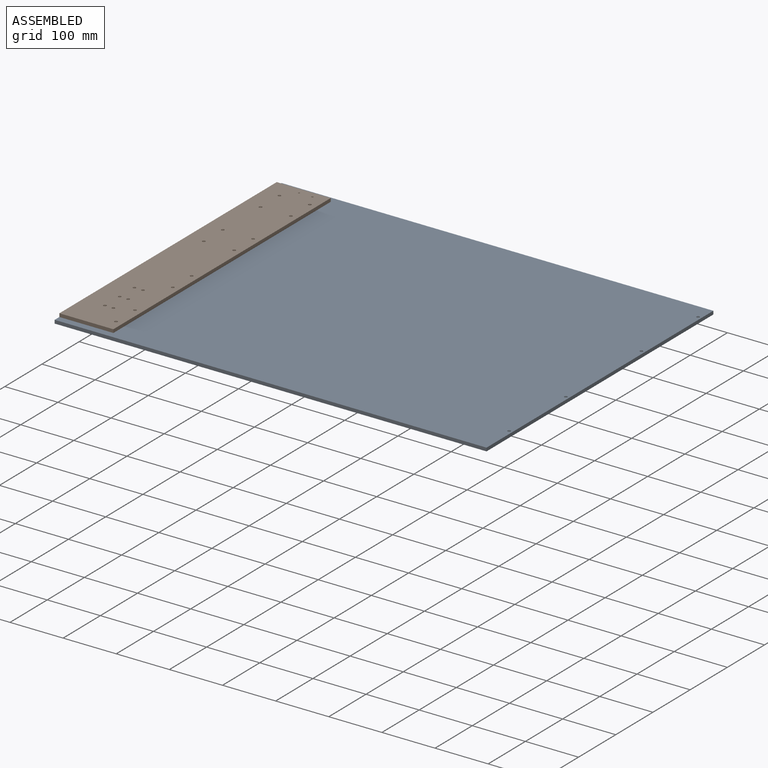
[diagram: assembled view]
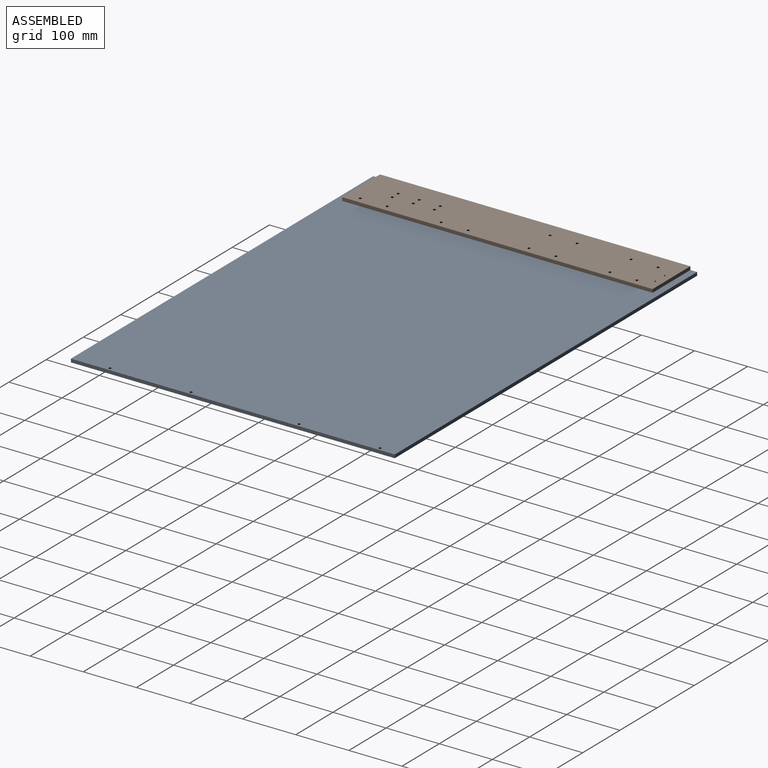
[diagram: assembled view, second angle]
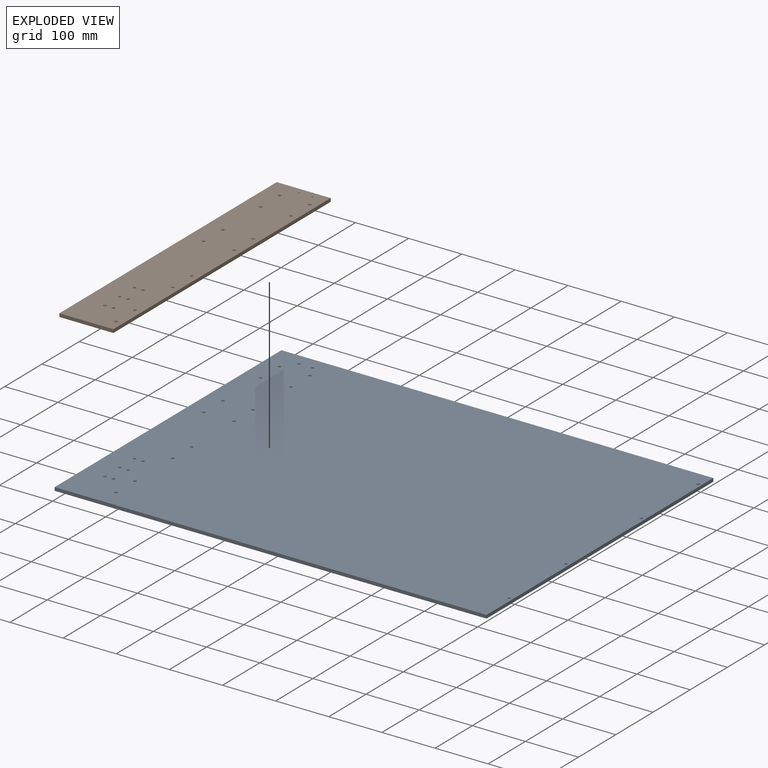
[diagram: exploded view]
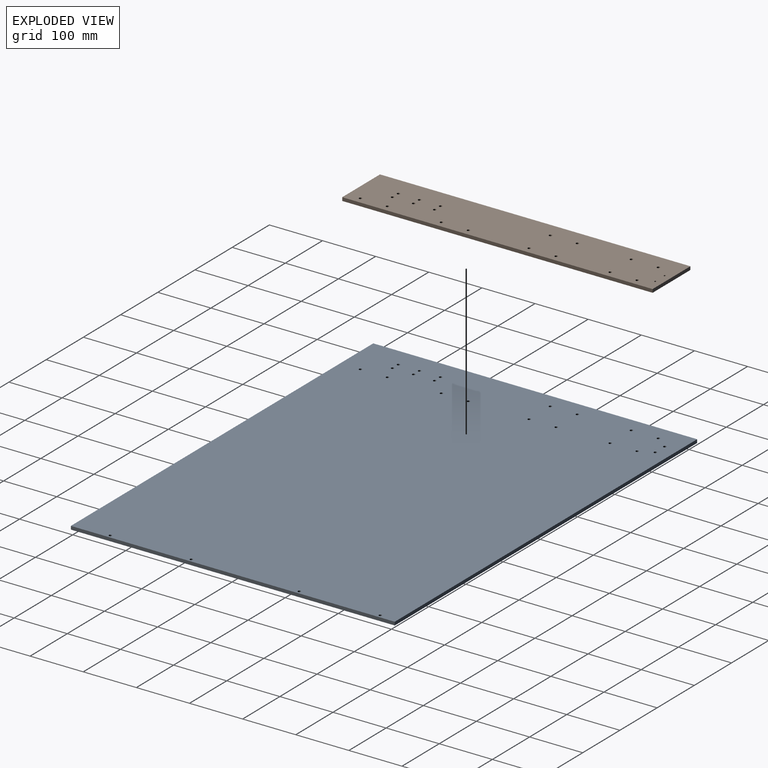
[diagram: exploded view, second angle]
ASSEMBLY  parts=2 mates=2
PART A: 30 faces, bbox 812.8x609.6x6.4 mm
  f0: plane 609.6x6.35mm, normal (1,0,0), area 3871mm2, adj f1,f3,f4,f5
  f1: plane 812.8x6.35mm, normal (0,1,0), area 5161.3mm2, adj f0,f2,f4,f5
  f2: plane 609.6x6.35mm, normal (-1,0,0), area 3871mm2, adj f1,f3,f4,f5
  f3: plane 812.8x6.35mm, normal (0,-1,0), area 5161.3mm2, adj f0,f2,f4,f5
  f4: plane 812.8x609.6mm, normal (0,0,1), area 494904.9mm2, adj f0,f1,f2,f3,f6,f7,f8,f9
  f5: plane 812.8x609.6mm, normal (0,0,-1), area 494904.9mm2, adj f0,f1,f2,f3,f6,f7,f8,f9
  f6: cylinder r=2.77mm len=6.35mm, axis (0,0,1), area 110.5mm2, adj f4,f5
  f7: cylinder r=2.77mm len=6.35mm, axis (0,0,1), area 110.5mm2, adj f4,f5
  f8: cylinder r=2.77mm len=6.35mm, axis (0,0,1), area 110.5mm2, adj f4,f5
  f9: cylinder r=2.77mm len=6.35mm, axis (0,0,1), area 110.5mm2, adj f4,f5
  f10: cylinder r=2.77mm len=6.35mm, axis (0,0,1), area 110.5mm2, adj f4,f5
  f11: cylinder r=2.77mm len=6.35mm, axis (0,0,1), area 110.5mm2, adj f4,f5
  f12: cylinder r=2.77mm len=6.35mm, axis (0,0,1), area 110.5mm2, adj f4,f5
  f13: cylinder r=2.77mm len=6.35mm, axis (0,0,1), area 110.5mm2, adj f4,f5
  f14: cylinder r=2.77mm len=6.35mm, axis (0,0,1), area 110.5mm2, adj f4,f5
  f15: cylinder r=2.77mm len=6.35mm, axis (0,0,1), area 110.5mm2, adj f4,f5
  f16: cylinder r=2.77mm len=6.35mm, axis (0,0,1), area 110.5mm2, adj f4,f5
  f17: cylinder r=2.77mm len=6.35mm, axis (0,0,1), area 110.5mm2, adj f4,f5
  f18: cylinder r=2.77mm len=6.35mm, axis (0,0,1), area 110.5mm2, adj f4,f5
  f19: cylinder r=2.77mm len=6.35mm, axis (0,0,1), area 110.5mm2, adj f4,f5
  f20: cylinder r=2.77mm len=6.35mm, axis (0,0,1), area 110.5mm2, adj f4,f5
  f21: cylinder r=2.77mm len=6.35mm, axis (0,0,1), area 110.5mm2, adj f4,f5
  f22: cylinder r=2.77mm len=6.35mm, axis (0,0,1), area 110.5mm2, adj f4,f5
  f23: cylinder r=2.77mm len=6.35mm, axis (0,0,1), area 110.5mm2, adj f4,f5
  f24: cylinder r=2.77mm len=6.35mm, axis (0,0,1), area 110.5mm2, adj f4,f5
  f25: cylinder r=2.77mm len=6.35mm, axis (0,0,1), area 110.5mm2, adj f4,f5
  f26: cylinder r=2.77mm len=6.35mm, axis (0,0,1), area 110.5mm2, adj f4,f5
  f27: cylinder r=2.77mm len=6.35mm, axis (0,0,1), area 110.5mm2, adj f4,f5
  f28: cylinder r=2.77mm len=6.35mm, axis (0,0,1), area 110.5mm2, adj f4,f5
  f29: cylinder r=2.77mm len=6.35mm, axis (0,0,1), area 110.5mm2, adj f4,f5
PART B: 26 faces, bbox 101.6x584.2x6.4 mm
  f0: plane 101.6x6.35mm, normal (0,1,0), area 645.2mm2, adj f1,f3,f4,f5
  f1: plane 584.2x6.35mm, normal (-1,0,0), area 3709.7mm2, adj f0,f2,f4,f5
  f2: plane 101.6x6.35mm, normal (0,-1,0), area 645.2mm2, adj f1,f3,f4,f5
  f3: plane 584.2x6.35mm, normal (1,0,0), area 3709.7mm2, adj f0,f2,f4,f5
  f4: plane 584.2x101.6mm, normal (0,0,1), area 58903.1mm2, adj f0,f1,f2,f3,f6,f7,f8,f9
  f5: plane 584.2x101.6mm, normal (0,0,-1), area 58903.1mm2, adj f0,f1,f2,f3,f6,f7,f8,f9
  f6: cylinder r=2.77mm len=6.35mm, axis (0,0,1), area 110.5mm2, adj f4,f5
  f7: cylinder r=2.77mm len=6.35mm, axis (0,0,1), area 110.5mm2, adj f4,f5
  f8: cylinder r=2.77mm len=6.35mm, axis (0,0,1), area 110.5mm2, adj f4,f5
  f9: cylinder r=2.77mm len=6.35mm, axis (0,0,1), area 110.5mm2, adj f4,f5
  f10: cylinder r=2.77mm len=6.35mm, axis (0,0,1), area 110.5mm2, adj f4,f5
  f11: cylinder r=2.77mm len=6.35mm, axis (0,0,1), area 110.5mm2, adj f4,f5
  f12: cylinder r=2.77mm len=6.35mm, axis (0,0,1), area 110.5mm2, adj f4,f5
  f13: cylinder r=2.77mm len=6.35mm, axis (0,0,1), area 110.5mm2, adj f4,f5
  f14: cylinder r=2.77mm len=6.35mm, axis (0,0,1), area 110.5mm2, adj f4,f5
  f15: cylinder r=2.77mm len=6.35mm, axis (0,0,1), area 110.5mm2, adj f4,f5
  f16: cylinder r=2.77mm len=6.35mm, axis (0,0,1), area 110.5mm2, adj f4,f5
  f17: cylinder r=2.77mm len=6.35mm, axis (0,0,1), area 110.5mm2, adj f4,f5
  f18: cylinder r=2.77mm len=6.35mm, axis (0,0,1), area 110.5mm2, adj f4,f5
  f19: cylinder r=2.77mm len=6.35mm, axis (0,0,1), area 110.5mm2, adj f4,f5
  f20: cylinder r=2.77mm len=6.35mm, axis (0,0,1), area 110.5mm2, adj f4,f5
  f21: cylinder r=2.77mm len=6.35mm, axis (0,0,1), area 110.5mm2, adj f4,f5
  f22: cylinder r=2.77mm len=6.35mm, axis (0,0,1), area 110.5mm2, adj f4,f5
  f23: cylinder r=2.77mm len=6.35mm, axis (0,0,1), area 110.5mm2, adj f4,f5
  f24: cylinder r=1.7mm len=6.35mm, axis (0,0,1), area 67.9mm2, adj f4,f5
  f25: cylinder r=1.7mm len=6.35mm, axis (0,0,1), area 67.9mm2, adj f4,f5
PLACE A t=(200.06,5.7,125.13)mm
PLACE B t=(200.06,602.6,131.48)mm
MATE cylindrical A.f29 <-> B.f17  axis (0,0,1) through (288.96,564.5,131.48)mm
MATE planar B.f9 <-> A.f4  axis (0,0,-1) through (257.21,161.27,131.48)mm
